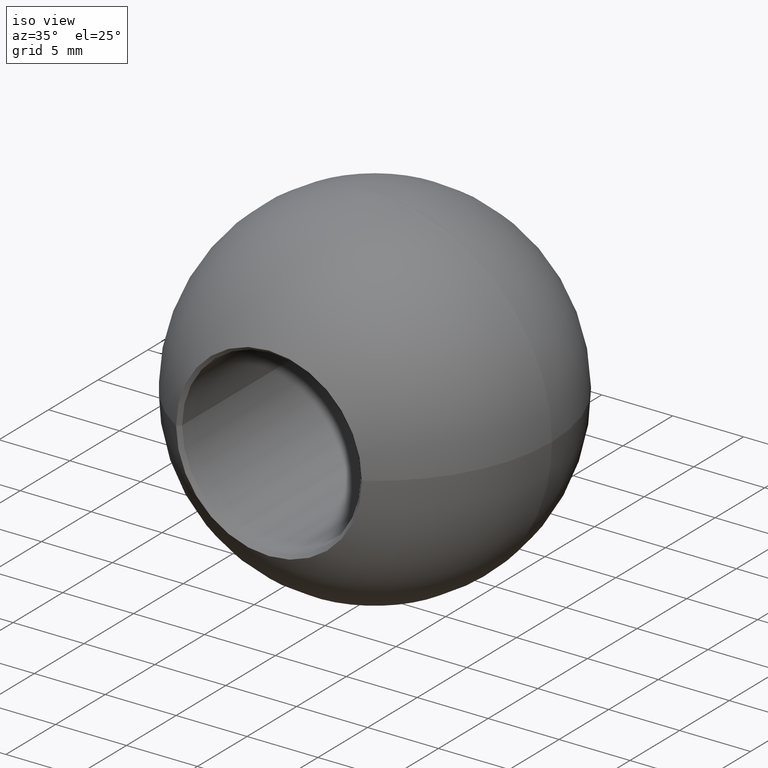
[diagram: clean part render]
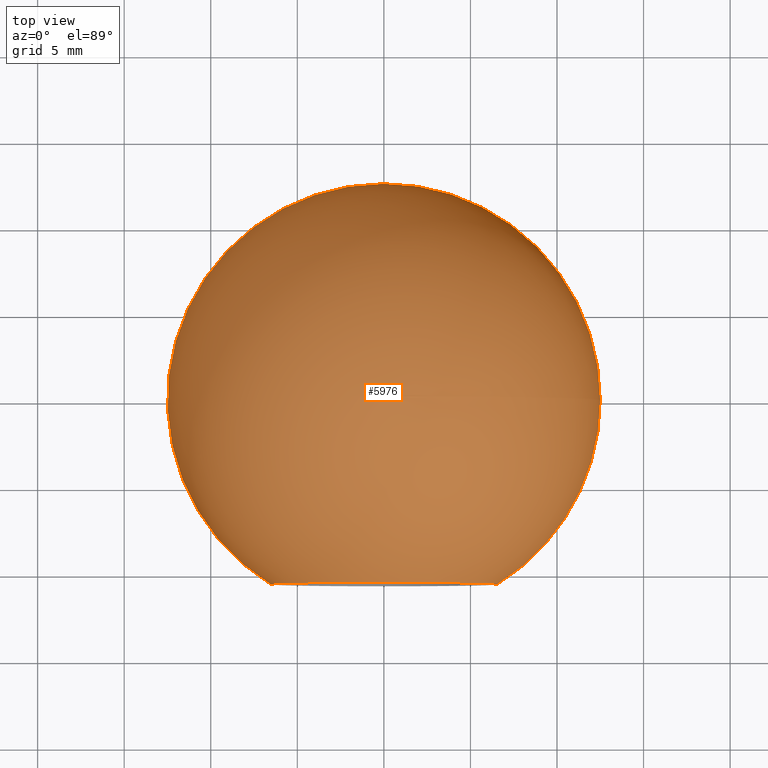
[diagram: tour spotlight — one face highlighted and labeled with its STEP entity id]
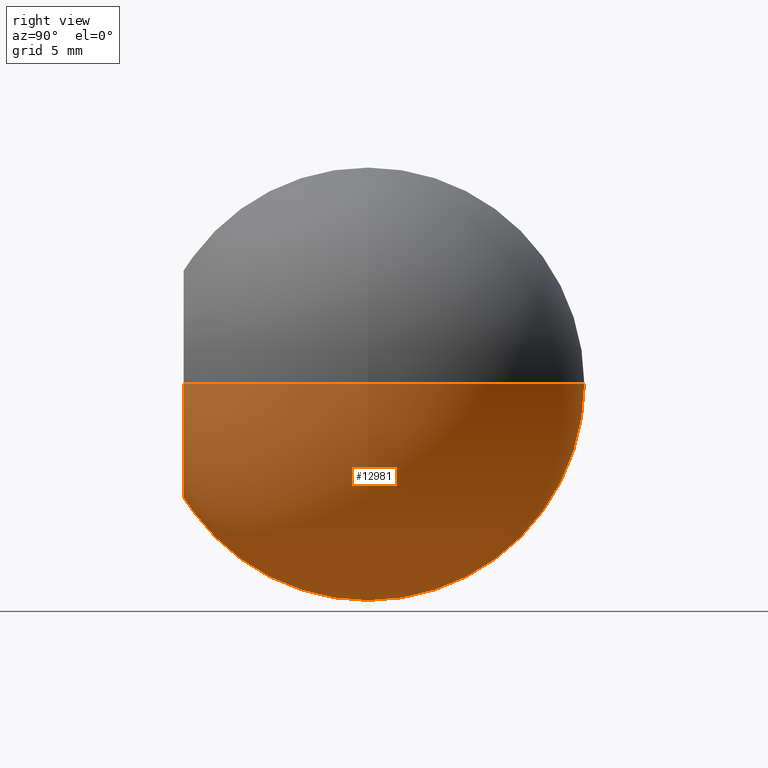
[diagram: tour spotlight — one face highlighted and labeled with its STEP entity id]
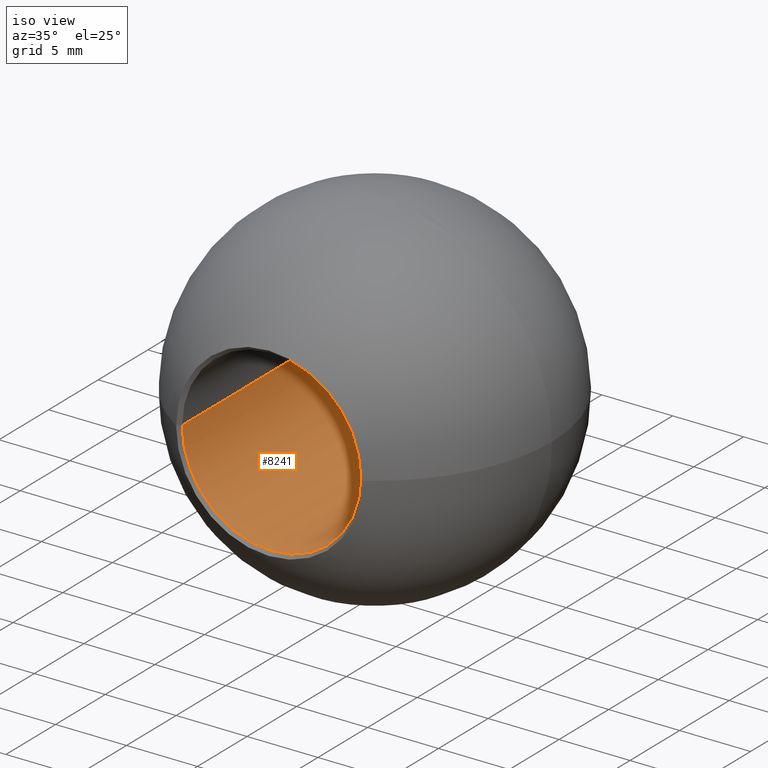
[diagram: tour spotlight — one face highlighted and labeled with its STEP entity id]
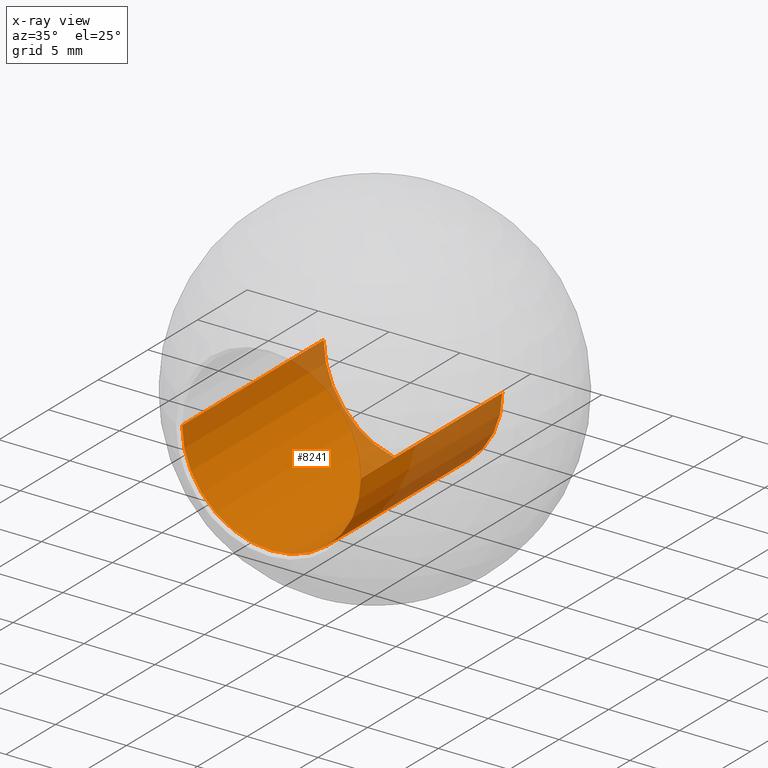
[diagram: x-ray of the same camera — body ghosted, this tour face saturated]
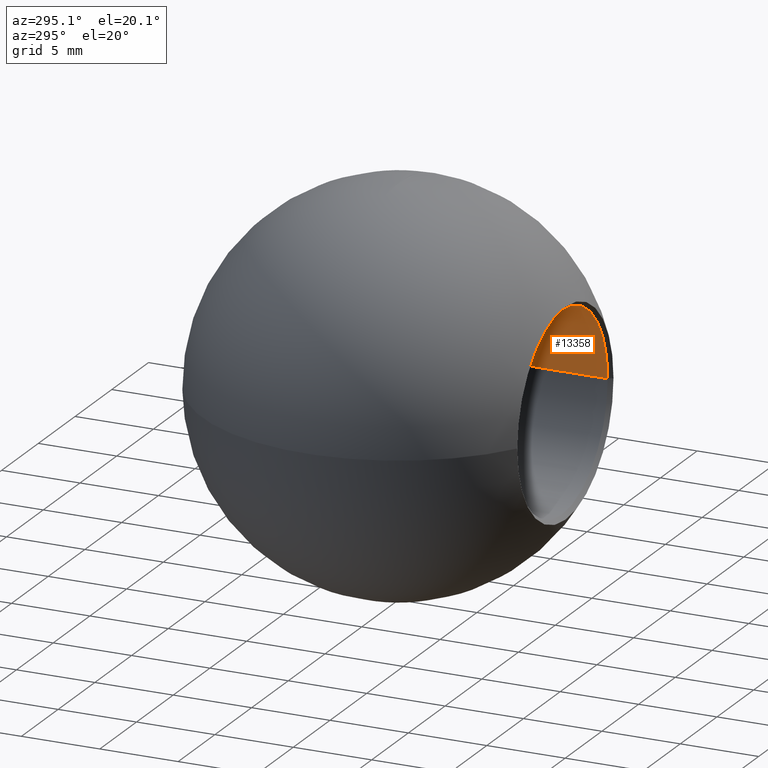
[diagram: tour spotlight — one face highlighted and labeled with its STEP entity id]
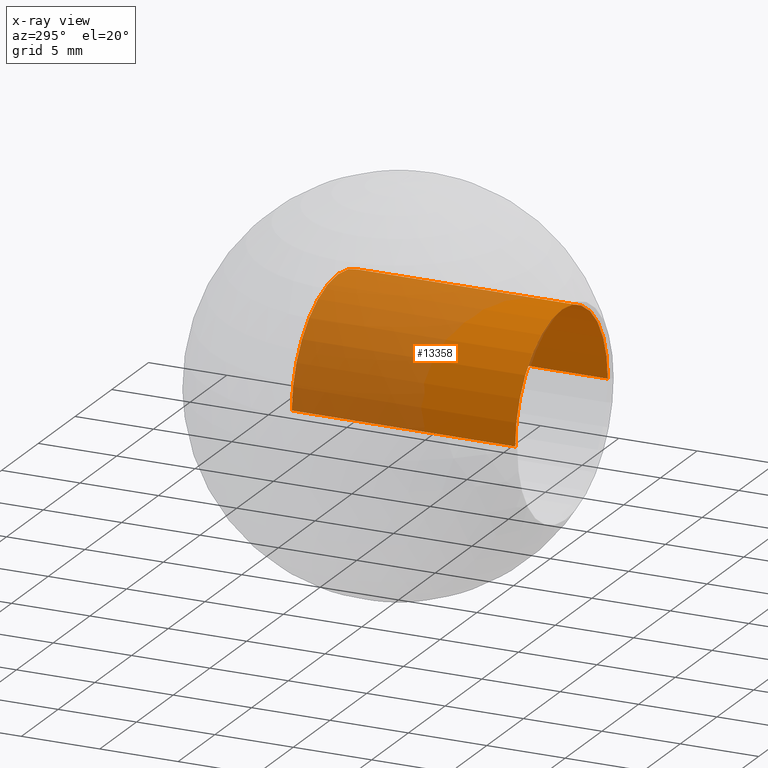
[diagram: x-ray of the same camera — body ghosted, this tour face saturated]
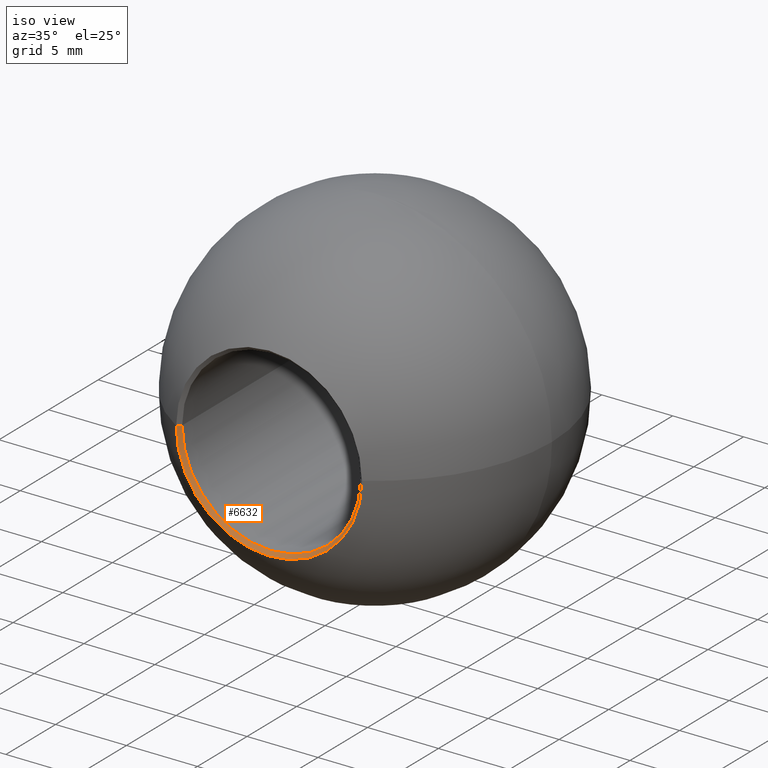
[diagram: tour spotlight — one face highlighted and labeled with its STEP entity id]
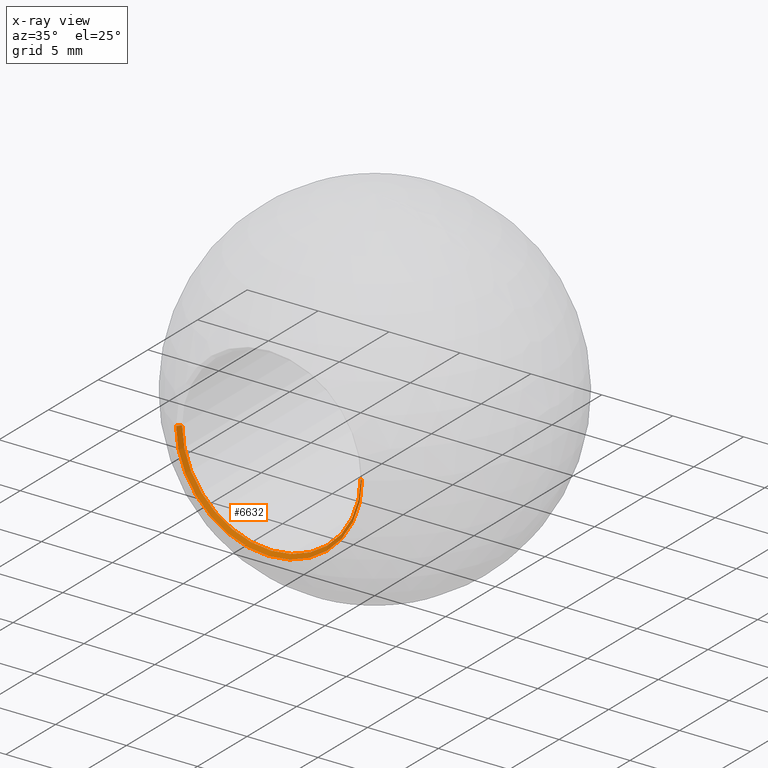
[diagram: x-ray of the same camera — body ghosted, this tour face saturated]
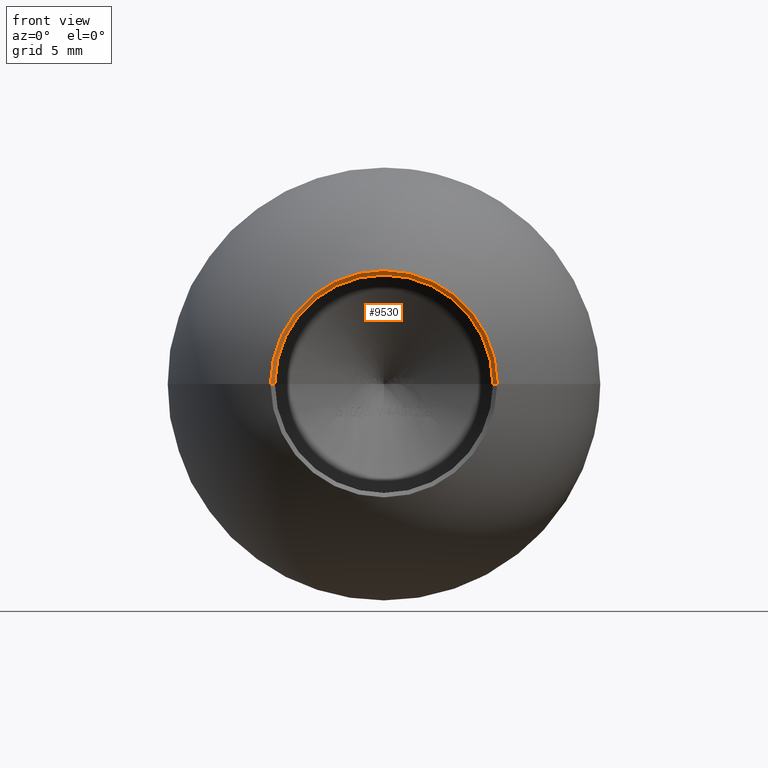
[diagram: tour spotlight — one face highlighted and labeled with its STEP entity id]
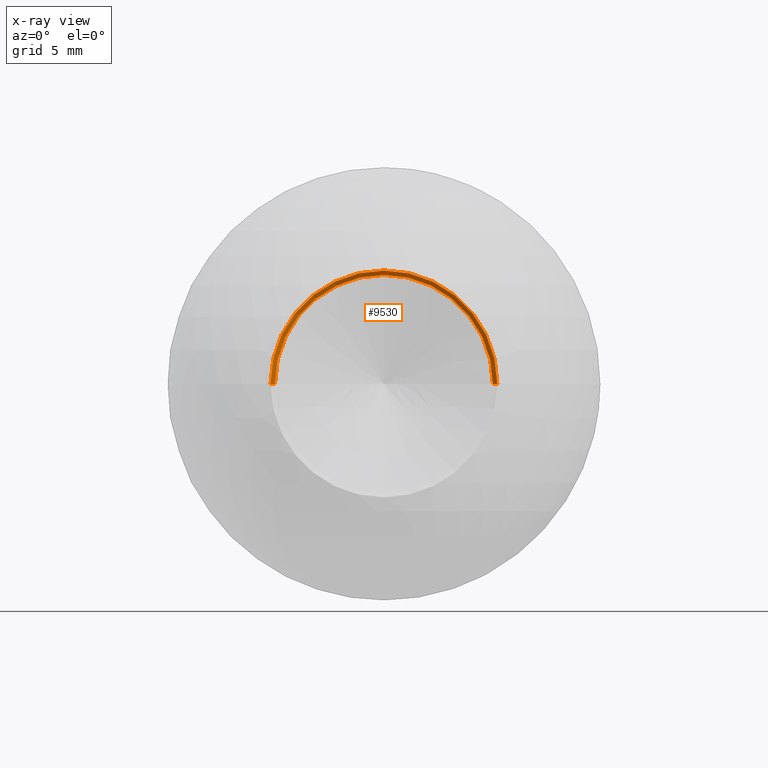
[diagram: x-ray of the same camera — body ghosted, this tour face saturated]
A machine part: a face-by-face anatomy tour. The part has 287 B-rep faces; the first image is the clean iso view, then the 6 largest visible faces are spotlighted one at a time (largest first), each with its STEP entity span.

Face 1 — top view, entity #5976. In plain terms, the highlighted spherical surface has radius 12.5 mm.
Definition (entity closure, byte-faithful):
#206 = DIRECTION ( 'NONE',  ( 0.0000000000000000000, 0.0000000000000000000, -1.000000000000000000 ) ) ;
#1668 = DIRECTION ( 'NONE',  ( 1.224646799147353200E-016, 3.269589715169796100E-034, 1.000000000000000000 ) ) ;
#1685 = CIRCLE ( 'NONE', #5963, 12.50000000000000000 ) ;
#2307 = ORIENTED_EDGE ( 'NONE', *, *, #5779, .F. ) ;
#2431 = VERTEX_POINT ( 'NONE', #6140 ) ;
#2583 = DIRECTION ( 'NONE',  ( 1.000000000000000000, 0.0000000000000000000, 0.0000000000000000000 ) ) ;
#2587 = CARTESIAN_POINT ( 'NONE',  ( 0.0000000000000000000, 0.0000000000000000000, 0.0000000000000000000 ) ) ;
#2873 = DIRECTION ( 'NONE',  ( 1.000000000000000000, 0.0000000000000000000, -1.224646799147353200E-016 ) ) ;
#3260 = EDGE_CURVE ( 'NONE', #2431, #8944, #8677, .T. ) ;
#4411 = VERTEX_POINT ( 'NONE', #9453 ) ;
#4742 = CARTESIAN_POINT ( 'NONE',  ( 6.179699111223972900E-017, -10.64647829096551800, 0.0000000000000000000 ) ) ;
#4979 = EDGE_LOOP ( 'NONE', ( #7096, #6994, #2307 ) ) ;
#5539 = DIRECTION ( 'NONE',  ( 1.000000000000000000, 2.669822611259190700E-018, 0.0000000000000000000 ) ) ;
#5685 = FACE_OUTER_BOUND ( 'NONE', #4979, .T. ) ;
#5779 = EDGE_CURVE ( 'NONE', #4411, #8944, #8645, .T. ) ;
#5963 = AXIS2_PLACEMENT_3D ( 'NONE', #10860, #206, #11734 ) ;
#5976 = ADVANCED_FACE ( 'NONE', ( #5685 ), #11624, .T. ) ;
#6140 = CARTESIAN_POINT ( 'NONE',  ( 7.320314668263559900E-016, 12.50000000000000000, 0.0000000000000000000 ) ) ;
#6994 = ORIENTED_EDGE ( 'NONE', *, *, #3260, .T. ) ;
#7096 = ORIENTED_EDGE ( 'NONE', *, *, #11721, .F. ) ;
#7516 = AXIS2_PLACEMENT_3D ( 'NONE', #4742, #11995, #2583 ) ;
#7960 = CARTESIAN_POINT ( 'NONE',  ( -6.549999999999997200, -10.64647829096551800, 8.021436534415159300E-016 ) ) ;
#8645 = CIRCLE ( 'NONE', #7516, 6.549999999999997200 ) ;
#8653 = AXIS2_PLACEMENT_3D ( 'NONE', #10858, #10968, #5539 ) ;
#8677 = CIRCLE ( 'NONE', #9717, 12.50000000000000000 ) ;
#8944 = VERTEX_POINT ( 'NONE', #7960 ) ;
#9453 = CARTESIAN_POINT ( 'NONE',  ( 6.549999999999997200, -10.64647829096551800, 0.0000000000000000000 ) ) ;
#9717 = AXIS2_PLACEMENT_3D ( 'NONE', #2587, #1668, #2873 ) ;
#10858 = CARTESIAN_POINT ( 'NONE',  ( 0.0000000000000000000, 0.0000000000000000000, 0.0000000000000000000 ) ) ;
#10860 = CARTESIAN_POINT ( 'NONE',  ( 0.0000000000000000000, 0.0000000000000000000, 0.0000000000000000000 ) ) ;
#10968 = DIRECTION ( 'NONE',  ( 0.0000000000000000000, -0.0000000000000000000, 1.000000000000000000 ) ) ;
#11624 = SPHERICAL_SURFACE ( 'NONE', #8653, 12.50000000000000000 ) ;
#11721 = EDGE_CURVE ( 'NONE', #2431, #4411, #1685, .T. ) ;
#11734 = DIRECTION ( 'NONE',  ( -1.000000000000000000, 0.0000000000000000000, 0.0000000000000000000 ) ) ;
#11995 = DIRECTION ( 'NONE',  ( 2.669822611259190700E-018, -1.000000000000000000, -0.0000000000000000000 ) ) ;

Face 2 — right view, entity #12981. In plain terms, the highlighted spherical surface has radius 12.5 mm.
Definition (entity closure, byte-faithful):
#206 = DIRECTION ( 'NONE',  ( 0.0000000000000000000, 0.0000000000000000000, -1.000000000000000000 ) ) ;
#492 = AXIS2_PLACEMENT_3D ( 'NONE', #1621, #8807, #13098 ) ;
#661 = AXIS2_PLACEMENT_3D ( 'NONE', #6416, #2090, #6283 ) ;
#1621 = CARTESIAN_POINT ( 'NONE',  ( 0.0000000000000000000, 0.0000000000000000000, 0.0000000000000000000 ) ) ;
#1668 = DIRECTION ( 'NONE',  ( 1.224646799147353200E-016, 3.269589715169796100E-034, 1.000000000000000000 ) ) ;
#1685 = CIRCLE ( 'NONE', #5963, 12.50000000000000000 ) ;
#2090 = DIRECTION ( 'NONE',  ( 2.669822611259190700E-018, -1.000000000000000000, -0.0000000000000000000 ) ) ;
#2431 = VERTEX_POINT ( 'NONE', #6140 ) ;
#2587 = CARTESIAN_POINT ( 'NONE',  ( 0.0000000000000000000, 0.0000000000000000000, 0.0000000000000000000 ) ) ;
#2873 = DIRECTION ( 'NONE',  ( 1.000000000000000000, 0.0000000000000000000, -1.224646799147353200E-016 ) ) ;
#3260 = EDGE_CURVE ( 'NONE', #2431, #8944, #8677, .T. ) ;
#3314 = ORIENTED_EDGE ( 'NONE', *, *, #11721, .T. ) ;
#4411 = VERTEX_POINT ( 'NONE', #9453 ) ;
#5963 = AXIS2_PLACEMENT_3D ( 'NONE', #10860, #206, #11734 ) ;
#6140 = CARTESIAN_POINT ( 'NONE',  ( 7.320314668263559900E-016, 12.50000000000000000, 0.0000000000000000000 ) ) ;
#6283 = DIRECTION ( 'NONE',  ( 1.000000000000000000, 0.0000000000000000000, 0.0000000000000000000 ) ) ;
#6416 = CARTESIAN_POINT ( 'NONE',  ( 6.179699111223972900E-017, -10.64647829096551800, 0.0000000000000000000 ) ) ;
#6690 = CIRCLE ( 'NONE', #661, 6.549999999999997200 ) ;
#7119 = SPHERICAL_SURFACE ( 'NONE', #492, 12.50000000000000000 ) ;
#7419 = ORIENTED_EDGE ( 'NONE', *, *, #10943, .F. ) ;
#7960 = CARTESIAN_POINT ( 'NONE',  ( -6.549999999999997200, -10.64647829096551800, 8.021436534415159300E-016 ) ) ;
#8677 = CIRCLE ( 'NONE', #9717, 12.50000000000000000 ) ;
#8807 = DIRECTION ( 'NONE',  ( 0.0000000000000000000, -0.0000000000000000000, 1.000000000000000000 ) ) ;
#8944 = VERTEX_POINT ( 'NONE', #7960 ) ;
#9453 = CARTESIAN_POINT ( 'NONE',  ( 6.549999999999997200, -10.64647829096551800, 0.0000000000000000000 ) ) ;
#9717 = AXIS2_PLACEMENT_3D ( 'NONE', #2587, #1668, #2873 ) ;
#9911 = FACE_OUTER_BOUND ( 'NONE', #12570, .T. ) ;
#10860 = CARTESIAN_POINT ( 'NONE',  ( 0.0000000000000000000, 0.0000000000000000000, 0.0000000000000000000 ) ) ;
#10943 = EDGE_CURVE ( 'NONE', #8944, #4411, #6690, .T. ) ;
#11721 = EDGE_CURVE ( 'NONE', #2431, #4411, #1685, .T. ) ;
#11734 = DIRECTION ( 'NONE',  ( -1.000000000000000000, 0.0000000000000000000, 0.0000000000000000000 ) ) ;
#12570 = EDGE_LOOP ( 'NONE', ( #12982, #3314, #7419 ) ) ;
#12981 = ADVANCED_FACE ( 'NONE', ( #9911 ), #7119, .T. ) ;
#12982 = ORIENTED_EDGE ( 'NONE', *, *, #3260, .F. ) ;
#13098 = DIRECTION ( 'NONE',  ( 1.000000000000000000, 2.669822611259190700E-018, 0.0000000000000000000 ) ) ;

Face 3 — iso view, entity #8241. An x-ray twin of the same camera follows (body ghosted, this face saturated) — the face is partly hidden behind the body. In plain terms, the highlighted cylindrical surface (partial cylindrical patch) has radius 6.3 mm, axis along (0, -1, -0).
Definition (entity closure, byte-faithful):
#700 = CARTESIAN_POINT ( 'NONE',  ( 6.112953545942491600E-017, -10.39647829096551100, 0.0000000000000000000 ) ) ;
#707 = VECTOR ( 'NONE', #8710, 1000.000000000000000 ) ;
#775 = DIRECTION ( 'NONE',  ( 1.000000000000000000, 0.0000000000000000000, 0.0000000000000000000 ) ) ;
#994 = LINE ( 'NONE', #7821, #11566 ) ;
#1069 = CARTESIAN_POINT ( 'NONE',  ( -6.299999999999999800, 3.853521709034483800, 7.715274834628325400E-016 ) ) ;
#1205 = CARTESIAN_POINT ( 'NONE',  ( 2.308456324898146100E-017, 3.853521709034483800, 0.0000000000000000000 ) ) ;
#1335 = CARTESIAN_POINT ( 'NONE',  ( 6.300000000000000700, 7.638943608908091300, 0.0000000000000000000 ) ) ;
#1518 = ORIENTED_EDGE ( 'NONE', *, *, #11668, .F. ) ;
#1978 = VERTEX_POINT ( 'NONE', #13527 ) ;
#2892 = ORIENTED_EDGE ( 'NONE', *, *, #10076, .F. ) ;
#2912 = ORIENTED_EDGE ( 'NONE', *, *, #3330, .T. ) ;
#3330 = EDGE_CURVE ( 'NONE', #11702, #11710, #9682, .T. ) ;
#3344 = FACE_OUTER_BOUND ( 'NONE', #3669, .T. ) ;
#3421 = CARTESIAN_POINT ( 'NONE',  ( 6.300000000000001600, -10.39647829096551100, 0.0000000000000000000 ) ) ;
#3669 = EDGE_LOOP ( 'NONE', ( #1518, #5892, #2912, #2892 ) ) ;
#4773 = AXIS2_PLACEMENT_3D ( 'NONE', #700, #8063, #7608 ) ;
#4883 = CARTESIAN_POINT ( 'NONE',  ( 1.297815826754317900E-017, 7.638943608908091300, 0.0000000000000000000 ) ) ;
#4924 = DIRECTION ( 'NONE',  ( 2.669822611259190700E-018, -1.000000000000000000, -0.0000000000000000000 ) ) ;
#5404 = DIRECTION ( 'NONE',  ( 1.000000000000000000, 0.0000000000000000000, 0.0000000000000000000 ) ) ;
#5452 = CIRCLE ( 'NONE', #11357, 6.299999999999999800 ) ;
#5790 = DIRECTION ( 'NONE',  ( 2.669822611259190700E-018, -1.000000000000000000, -0.0000000000000000000 ) ) ;
#5837 = CYLINDRICAL_SURFACE ( 'NONE', #6847, 6.300000000000000700 ) ;
#5892 = ORIENTED_EDGE ( 'NONE', *, *, #11833, .T. ) ;
#6847 = AXIS2_PLACEMENT_3D ( 'NONE', #4883, #4924, #775 ) ;
#6998 = LINE ( 'NONE', #1335, #707 ) ;
#7608 = DIRECTION ( 'NONE',  ( 1.000000000000000000, 0.0000000000000000000, 0.0000000000000000000 ) ) ;
#7821 = CARTESIAN_POINT ( 'NONE',  ( -6.300000000000000700, 7.638943608908091300, 7.715274834628326400E-016 ) ) ;
#8063 = DIRECTION ( 'NONE',  ( 2.669822611259190700E-018, -1.000000000000000000, -0.0000000000000000000 ) ) ;
#8241 = ADVANCED_FACE ( 'NONE', ( #3344 ), #5837, .F. ) ;
#8710 = DIRECTION ( 'NONE',  ( 2.669822611259190700E-018, -1.000000000000000000, -0.0000000000000000000 ) ) ;
#9682 = CIRCLE ( 'NONE', #4773, 6.300000000000001600 ) ;
#10076 = EDGE_CURVE ( 'NONE', #1978, #11710, #6998, .T. ) ;
#11357 = AXIS2_PLACEMENT_3D ( 'NONE', #1205, #11785, #5404 ) ;
#11435 = VERTEX_POINT ( 'NONE', #1069 ) ;
#11566 = VECTOR ( 'NONE', #5790, 1000.000000000000000 ) ;
#11668 = EDGE_CURVE ( 'NONE', #11435, #1978, #5452, .T. ) ;
#11702 = VERTEX_POINT ( 'NONE', #12787 ) ;
#11710 = VERTEX_POINT ( 'NONE', #3421 ) ;
#11785 = DIRECTION ( 'NONE',  ( 2.669822611259190700E-018, -1.000000000000000000, -0.0000000000000000000 ) ) ;
#11833 = EDGE_CURVE ( 'NONE', #11435, #11702, #994, .T. ) ;
#12787 = CARTESIAN_POINT ( 'NONE',  ( -6.300000000000001600, -10.39647829096551100, 7.868355684521743300E-016 ) ) ;
#13527 = CARTESIAN_POINT ( 'NONE',  ( 6.299999999999999800, 3.853521709034483800, 0.0000000000000000000 ) ) ;

Face 4 — auxiliary view, entity #13358. An x-ray twin of the same camera follows (body ghosted, this face saturated) — the face is partly hidden behind the body. In plain terms, the highlighted cylindrical surface (partial cylindrical patch) has radius 6.3 mm, axis along (0, -1, -0).
Definition (entity closure, byte-faithful):
#707 = VECTOR ( 'NONE', #8710, 1000.000000000000000 ) ;
#994 = LINE ( 'NONE', #7821, #11566 ) ;
#1069 = CARTESIAN_POINT ( 'NONE',  ( -6.299999999999999800, 3.853521709034483800, 7.715274834628325400E-016 ) ) ;
#1335 = CARTESIAN_POINT ( 'NONE',  ( 6.300000000000000700, 7.638943608908091300, 0.0000000000000000000 ) ) ;
#1870 = AXIS2_PLACEMENT_3D ( 'NONE', #12713, #9542, #9495 ) ;
#1910 = CIRCLE ( 'NONE', #1870, 6.299999999999999800 ) ;
#1978 = VERTEX_POINT ( 'NONE', #13527 ) ;
#2186 = CARTESIAN_POINT ( 'NONE',  ( 6.112953545942491600E-017, -10.39647829096551100, 0.0000000000000000000 ) ) ;
#2287 = DIRECTION ( 'NONE',  ( 1.000000000000000000, 0.0000000000000000000, 0.0000000000000000000 ) ) ;
#2971 = ORIENTED_EDGE ( 'NONE', *, *, #5520, .F. ) ;
#3105 = DIRECTION ( 'NONE',  ( 2.669822611259190700E-018, -1.000000000000000000, -0.0000000000000000000 ) ) ;
#3174 = ORIENTED_EDGE ( 'NONE', *, *, #10076, .T. ) ;
#3421 = CARTESIAN_POINT ( 'NONE',  ( 6.300000000000001600, -10.39647829096551100, 0.0000000000000000000 ) ) ;
#3601 = EDGE_LOOP ( 'NONE', ( #12213, #2971, #3174, #11730 ) ) ;
#5520 = EDGE_CURVE ( 'NONE', #1978, #11435, #1910, .T. ) ;
#5790 = DIRECTION ( 'NONE',  ( 2.669822611259190700E-018, -1.000000000000000000, -0.0000000000000000000 ) ) ;
#6723 = DIRECTION ( 'NONE',  ( 2.669822611259190700E-018, -1.000000000000000000, -0.0000000000000000000 ) ) ;
#6998 = LINE ( 'NONE', #1335, #707 ) ;
#7296 = AXIS2_PLACEMENT_3D ( 'NONE', #8789, #6723, #2287 ) ;
#7821 = CARTESIAN_POINT ( 'NONE',  ( -6.300000000000000700, 7.638943608908091300, 7.715274834628326400E-016 ) ) ;
#8710 = DIRECTION ( 'NONE',  ( 2.669822611259190700E-018, -1.000000000000000000, -0.0000000000000000000 ) ) ;
#8789 = CARTESIAN_POINT ( 'NONE',  ( 1.297815826754317900E-017, 7.638943608908091300, 0.0000000000000000000 ) ) ;
#9423 = CIRCLE ( 'NONE', #10228, 6.300000000000001600 ) ;
#9495 = DIRECTION ( 'NONE',  ( 1.000000000000000000, 0.0000000000000000000, 0.0000000000000000000 ) ) ;
#9542 = DIRECTION ( 'NONE',  ( 2.669822611259190700E-018, -1.000000000000000000, -0.0000000000000000000 ) ) ;
#10076 = EDGE_CURVE ( 'NONE', #1978, #11710, #6998, .T. ) ;
#10228 = AXIS2_PLACEMENT_3D ( 'NONE', #2186, #3105, #10483 ) ;
#10483 = DIRECTION ( 'NONE',  ( 1.000000000000000000, 0.0000000000000000000, 0.0000000000000000000 ) ) ;
#11389 = CYLINDRICAL_SURFACE ( 'NONE', #7296, 6.300000000000000700 ) ;
#11435 = VERTEX_POINT ( 'NONE', #1069 ) ;
#11566 = VECTOR ( 'NONE', #5790, 1000.000000000000000 ) ;
#11702 = VERTEX_POINT ( 'NONE', #12787 ) ;
#11707 = FACE_OUTER_BOUND ( 'NONE', #3601, .T. ) ;
#11710 = VERTEX_POINT ( 'NONE', #3421 ) ;
#11730 = ORIENTED_EDGE ( 'NONE', *, *, #12522, .T. ) ;
#11833 = EDGE_CURVE ( 'NONE', #11435, #11702, #994, .T. ) ;
#12213 = ORIENTED_EDGE ( 'NONE', *, *, #11833, .F. ) ;
#12522 = EDGE_CURVE ( 'NONE', #11710, #11702, #9423, .T. ) ;
#12713 = CARTESIAN_POINT ( 'NONE',  ( 2.308456324898146100E-017, 3.853521709034483800, 0.0000000000000000000 ) ) ;
#12787 = CARTESIAN_POINT ( 'NONE',  ( -6.300000000000001600, -10.39647829096551100, 7.868355684521743300E-016 ) ) ;
#13358 = ADVANCED_FACE ( 'NONE', ( #11707 ), #11389, .F. ) ;
#13527 = CARTESIAN_POINT ( 'NONE',  ( 6.299999999999999800, 3.853521709034483800, 0.0000000000000000000 ) ) ;

Face 5 — iso view, entity #6632. An x-ray twin of the same camera follows (body ghosted, this face saturated) — the face is partly hidden behind the body. In plain terms, the highlighted conical surface has half-angle 45 deg.
Definition (entity closure, byte-faithful):
#661 = AXIS2_PLACEMENT_3D ( 'NONE', #6416, #2090, #6283 ) ;
#700 = CARTESIAN_POINT ( 'NONE',  ( 6.112953545942491600E-017, -10.39647829096551100, 0.0000000000000000000 ) ) ;
#801 = ORIENTED_EDGE ( 'NONE', *, *, #3330, .F. ) ;
#1833 = EDGE_CURVE ( 'NONE', #11702, #8944, #12979, .T. ) ;
#2090 = DIRECTION ( 'NONE',  ( 2.669822611259190700E-018, -1.000000000000000000, -0.0000000000000000000 ) ) ;
#2110 = DIRECTION ( 'NONE',  ( 1.000000000000000000, 0.0000000000000000000, 0.0000000000000000000 ) ) ;
#2995 = ORIENTED_EDGE ( 'NONE', *, *, #10943, .T. ) ;
#3330 = EDGE_CURVE ( 'NONE', #11702, #11710, #9682, .T. ) ;
#3421 = CARTESIAN_POINT ( 'NONE',  ( 6.300000000000001600, -10.39647829096551100, 0.0000000000000000000 ) ) ;
#4411 = VERTEX_POINT ( 'NONE', #9453 ) ;
#4773 = AXIS2_PLACEMENT_3D ( 'NONE', #700, #8063, #7608 ) ;
#5008 = VECTOR ( 'NONE', #9152, 1000.000000000000100 ) ;
#5150 = CARTESIAN_POINT ( 'NONE',  ( 6.112953545942491600E-017, -10.39647829096551100, 0.0000000000000000000 ) ) ;
#6283 = DIRECTION ( 'NONE',  ( 1.000000000000000000, 0.0000000000000000000, 0.0000000000000000000 ) ) ;
#6416 = CARTESIAN_POINT ( 'NONE',  ( 6.179699111223972900E-017, -10.64647829096551800, 0.0000000000000000000 ) ) ;
#6632 = ADVANCED_FACE ( 'NONE', ( #9813 ), #12934, .F. ) ;
#6690 = CIRCLE ( 'NONE', #661, 6.549999999999997200 ) ;
#7608 = DIRECTION ( 'NONE',  ( 1.000000000000000000, 0.0000000000000000000, 0.0000000000000000000 ) ) ;
#7818 = LINE ( 'NONE', #11035, #5008 ) ;
#7960 = CARTESIAN_POINT ( 'NONE',  ( -6.549999999999997200, -10.64647829096551800, 8.021436534415159300E-016 ) ) ;
#8063 = DIRECTION ( 'NONE',  ( 2.669822611259190700E-018, -1.000000000000000000, -0.0000000000000000000 ) ) ;
#8308 = DIRECTION ( 'NONE',  ( -0.7071067811865302500, -0.7071067811865646700, 8.659560562354722100E-017 ) ) ;
#8405 = ORIENTED_EDGE ( 'NONE', *, *, #1833, .T. ) ;
#8611 = EDGE_CURVE ( 'NONE', #11710, #4411, #7818, .T. ) ;
#8859 = VECTOR ( 'NONE', #8308, 1000.000000000000100 ) ;
#8944 = VERTEX_POINT ( 'NONE', #7960 ) ;
#9152 = DIRECTION ( 'NONE',  ( 0.7071067811865302500, -0.7071067811865646700, 0.0000000000000000000 ) ) ;
#9453 = CARTESIAN_POINT ( 'NONE',  ( 6.549999999999997200, -10.64647829096551800, 0.0000000000000000000 ) ) ;
#9682 = CIRCLE ( 'NONE', #4773, 6.300000000000001600 ) ;
#9813 = FACE_OUTER_BOUND ( 'NONE', #12931, .T. ) ;
#10943 = EDGE_CURVE ( 'NONE', #8944, #4411, #6690, .T. ) ;
#11035 = CARTESIAN_POINT ( 'NONE',  ( 6.300000000000001600, -10.39647829096551100, 0.0000000000000000000 ) ) ;
#11702 = VERTEX_POINT ( 'NONE', #12787 ) ;
#11710 = VERTEX_POINT ( 'NONE', #3421 ) ;
#12620 = DIRECTION ( 'NONE',  ( 2.669822611259190700E-018, -1.000000000000000000, -0.0000000000000000000 ) ) ;
#12759 = ORIENTED_EDGE ( 'NONE', *, *, #8611, .F. ) ;
#12787 = CARTESIAN_POINT ( 'NONE',  ( -6.300000000000001600, -10.39647829096551100, 7.868355684521743300E-016 ) ) ;
#12931 = EDGE_LOOP ( 'NONE', ( #801, #8405, #2995, #12759 ) ) ;
#12934 = CONICAL_SURFACE ( 'NONE', #13423, 6.300000000000001600, 0.7853981633974240800 ) ;
#12979 = LINE ( 'NONE', #13562, #8859 ) ;
#13423 = AXIS2_PLACEMENT_3D ( 'NONE', #5150, #12620, #2110 ) ;
#13562 = CARTESIAN_POINT ( 'NONE',  ( -6.300000000000001600, -10.39647829096551100, 7.715274834628327300E-016 ) ) ;

Face 6 — front view, entity #9530. An x-ray twin of the same camera follows (body ghosted, this face saturated) — the face is partly hidden behind the body. In plain terms, the highlighted conical surface has half-angle 45 deg.
Definition (entity closure, byte-faithful):
#1833 = EDGE_CURVE ( 'NONE', #11702, #8944, #12979, .T. ) ;
#2186 = CARTESIAN_POINT ( 'NONE',  ( 6.112953545942491600E-017, -10.39647829096551100, 0.0000000000000000000 ) ) ;
#2583 = DIRECTION ( 'NONE',  ( 1.000000000000000000, 0.0000000000000000000, 0.0000000000000000000 ) ) ;
#2609 = ORIENTED_EDGE ( 'NONE', *, *, #8611, .T. ) ;
#3105 = DIRECTION ( 'NONE',  ( 2.669822611259190700E-018, -1.000000000000000000, -0.0000000000000000000 ) ) ;
#3161 = DIRECTION ( 'NONE',  ( 1.000000000000000000, 0.0000000000000000000, 0.0000000000000000000 ) ) ;
#3180 = FACE_OUTER_BOUND ( 'NONE', #5653, .T. ) ;
#3421 = CARTESIAN_POINT ( 'NONE',  ( 6.300000000000001600, -10.39647829096551100, 0.0000000000000000000 ) ) ;
#4072 = ORIENTED_EDGE ( 'NONE', *, *, #5779, .T. ) ;
#4411 = VERTEX_POINT ( 'NONE', #9453 ) ;
#4742 = CARTESIAN_POINT ( 'NONE',  ( 6.179699111223972900E-017, -10.64647829096551800, 0.0000000000000000000 ) ) ;
#5008 = VECTOR ( 'NONE', #9152, 1000.000000000000100 ) ;
#5653 = EDGE_LOOP ( 'NONE', ( #10272, #13186, #2609, #4072 ) ) ;
#5779 = EDGE_CURVE ( 'NONE', #4411, #8944, #8645, .T. ) ;
#7516 = AXIS2_PLACEMENT_3D ( 'NONE', #4742, #11995, #2583 ) ;
#7818 = LINE ( 'NONE', #11035, #5008 ) ;
#7960 = CARTESIAN_POINT ( 'NONE',  ( -6.549999999999997200, -10.64647829096551800, 8.021436534415159300E-016 ) ) ;
#8308 = DIRECTION ( 'NONE',  ( -0.7071067811865302500, -0.7071067811865646700, 8.659560562354722100E-017 ) ) ;
#8589 = AXIS2_PLACEMENT_3D ( 'NONE', #13647, #9485, #3161 ) ;
#8611 = EDGE_CURVE ( 'NONE', #11710, #4411, #7818, .T. ) ;
#8645 = CIRCLE ( 'NONE', #7516, 6.549999999999997200 ) ;
#8859 = VECTOR ( 'NONE', #8308, 1000.000000000000100 ) ;
#8944 = VERTEX_POINT ( 'NONE', #7960 ) ;
#9152 = DIRECTION ( 'NONE',  ( 0.7071067811865302500, -0.7071067811865646700, 0.0000000000000000000 ) ) ;
#9423 = CIRCLE ( 'NONE', #10228, 6.300000000000001600 ) ;
#9453 = CARTESIAN_POINT ( 'NONE',  ( 6.549999999999997200, -10.64647829096551800, 0.0000000000000000000 ) ) ;
#9485 = DIRECTION ( 'NONE',  ( 2.669822611259190700E-018, -1.000000000000000000, -0.0000000000000000000 ) ) ;
#9530 = ADVANCED_FACE ( 'NONE', ( #3180 ), #10286, .F. ) ;
#10228 = AXIS2_PLACEMENT_3D ( 'NONE', #2186, #3105, #10483 ) ;
#10272 = ORIENTED_EDGE ( 'NONE', *, *, #1833, .F. ) ;
#10286 = CONICAL_SURFACE ( 'NONE', #8589, 6.300000000000001600, 0.7853981633974240800 ) ;
#10483 = DIRECTION ( 'NONE',  ( 1.000000000000000000, 0.0000000000000000000, 0.0000000000000000000 ) ) ;
#11035 = CARTESIAN_POINT ( 'NONE',  ( 6.300000000000001600, -10.39647829096551100, 0.0000000000000000000 ) ) ;
#11702 = VERTEX_POINT ( 'NONE', #12787 ) ;
#11710 = VERTEX_POINT ( 'NONE', #3421 ) ;
#11995 = DIRECTION ( 'NONE',  ( 2.669822611259190700E-018, -1.000000000000000000, -0.0000000000000000000 ) ) ;
#12522 = EDGE_CURVE ( 'NONE', #11710, #11702, #9423, .T. ) ;
#12787 = CARTESIAN_POINT ( 'NONE',  ( -6.300000000000001600, -10.39647829096551100, 7.868355684521743300E-016 ) ) ;
#12979 = LINE ( 'NONE', #13562, #8859 ) ;
#13186 = ORIENTED_EDGE ( 'NONE', *, *, #12522, .F. ) ;
#13562 = CARTESIAN_POINT ( 'NONE',  ( -6.300000000000001600, -10.39647829096551100, 7.715274834628327300E-016 ) ) ;
#13647 = CARTESIAN_POINT ( 'NONE',  ( 6.112953545942491600E-017, -10.39647829096551100, 0.0000000000000000000 ) ) ;